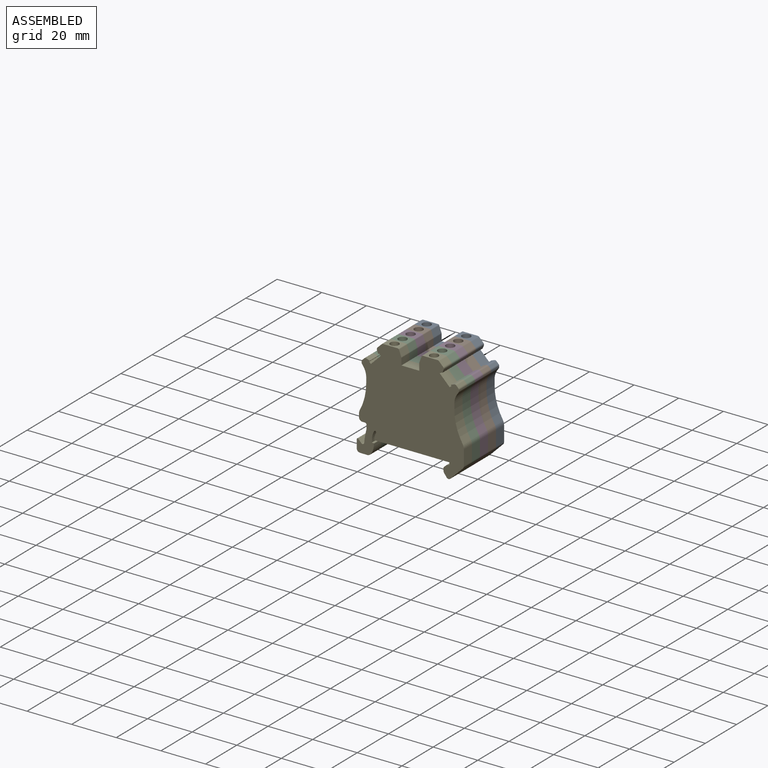
[diagram: assembled view]
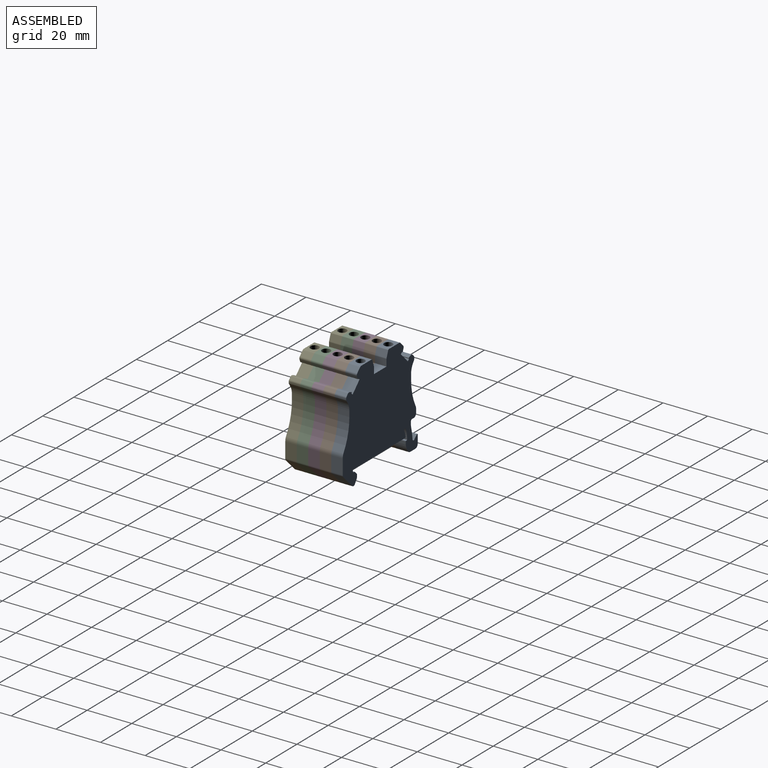
[diagram: assembled view, second angle]
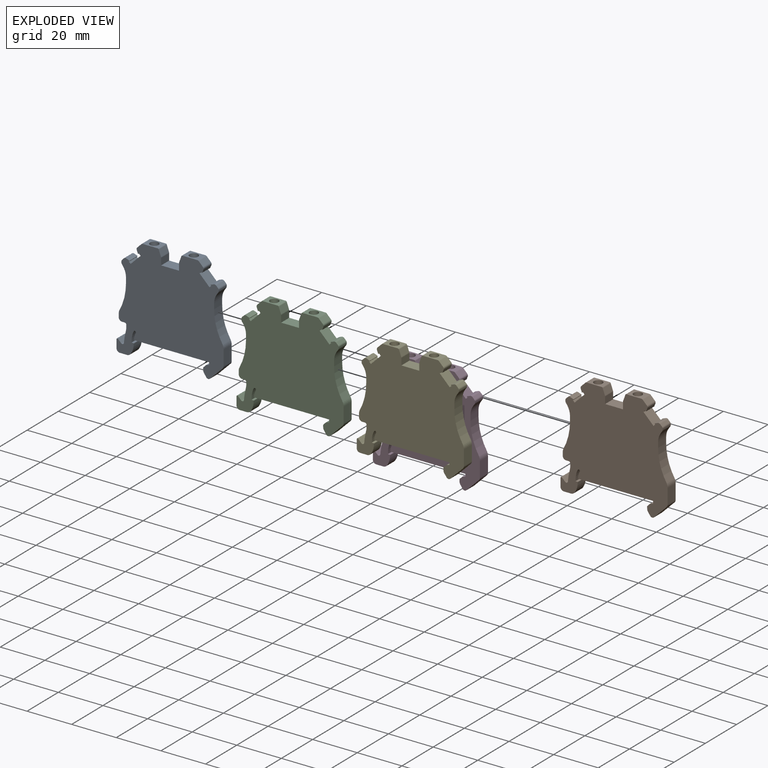
[diagram: exploded view]
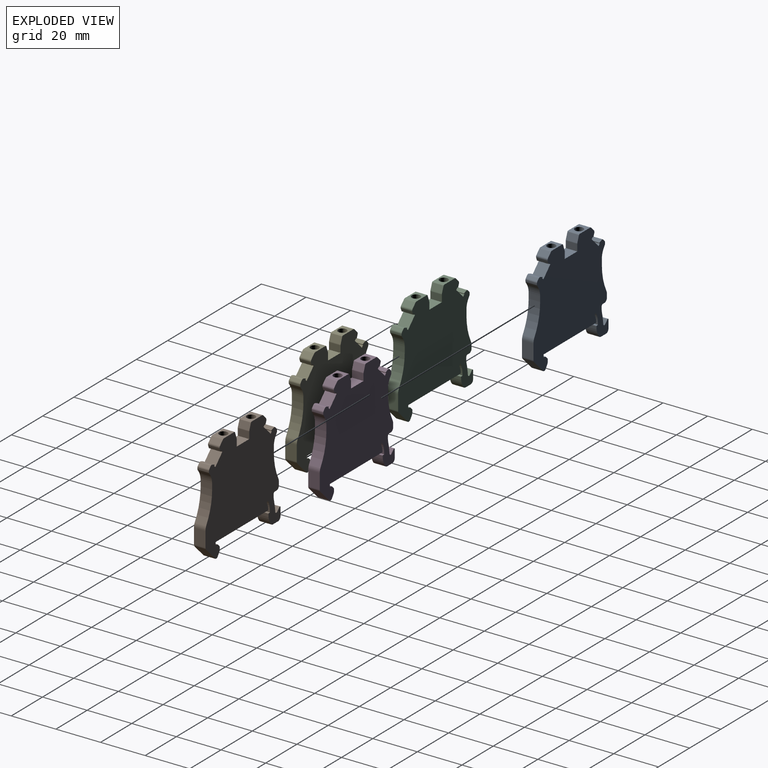
[diagram: exploded view, second angle]
ASSEMBLY  parts=5 mates=12
PART A: 101 faces, bbox 48x5.2x46.9 mm
  f0: plane 48x46.85mm, normal (0,-1,0), area 1599.4mm2, adj f1,f2,f3,f4,f5,f6,f7,f8
  f1: cylinder r=1mm len=5.15mm, axis (0,1,0), area 6mm2, adj f0,f2,f95,f96
  f2: plane 5.15x0.84mm, normal (0.71,0,0.71), area 6.1mm2, adj f0,f1,f3,f96
  f3: cylinder r=1mm len=5.15mm, axis (0,1,0), area 4mm2, adj f0,f2,f4,f96
  f4: plane 5.15x0.47mm, normal (1,0,0), area 2.4mm2, adj f0,f3,f5,f96
  f5: cylinder r=1mm len=5.15mm, axis (0,1,0), area 3.1mm2, adj f0,f4,f6,f96
  f6: plane 5.15x0.86mm, normal (0.82,0,-0.57), area 5.4mm2, adj f0,f5,f7,f96
  f7: cylinder r=7mm len=5.15mm, axis (0,1,0), area 22mm2, adj f0,f6,f8,f96
  f8: plane 5.15x2.37mm, normal (1,0,0), area 12.2mm2, adj f0,f7,f9,f96
  f9: cylinder r=25mm len=13.03mm, axis (0,1,0), area 70.6mm2, adj f0,f8,f10,f96
  f10: cylinder r=4mm len=5.15mm, axis (0,1,0), area 11.3mm2, adj f0,f9,f11,f96
  f11: plane 6.81x5.15mm, normal (1,0,0), area 35.1mm2, adj f0,f10,f12,f96
  f12: cylinder r=1.5mm len=5.15mm, axis (0,1,0), area 6.1mm2, adj f0,f11,f13,f96
  f13: plane 5.67x5.67mm, normal (0.71,0,-0.71), area 41.3mm2, adj f0,f12,f14,f96
  f14: cylinder r=1mm len=5.15mm, axis (0,1,0), area 4mm2, adj f0,f13,f15,f96
  f15: plane 5.15x0.13mm, normal (0,0,-1), area 0.7mm2, adj f0,f14,f16,f96
  f16: cylinder r=1mm len=5.15mm, axis (0,1,0), area 4.9mm2, adj f0,f15,f17,f96
  f17: plane 5.15x1.46mm, normal (-0.82,0,-0.57), area 9.2mm2, adj f0,f16,f18,f96
  f18: cylinder r=2mm len=5.15mm, axis (0,1,0), area 6.3mm2, adj f0,f17,f19,f96
  f19: plane 5.15x0.81mm, normal (-1,0,0), area 4.2mm2, adj f0,f18,f20,f96
  f20: cylinder r=0.5mm len=5.15mm, axis (0,1,0), area 2mm2, adj f0,f19,f21,f96
  f21: plane 5.15x1.11mm, normal (-0.71,0,0.71), area 8.1mm2, adj f0,f20,f22,f96
  f22: cylinder r=0.5mm len=5.15mm, axis (0,1,0), area 1.3mm2, adj f0,f21,f23,f96
  f23: plane 5.15x1.17mm, normal (-0.26,0,0.97), area 6.2mm2, adj f0,f22,f24,f96
  f24: plane 5.15x1.1mm, normal (-1,0,0), area 5.7mm2, adj f0,f23,f25,f96
  f25: plane 33.55x5.15mm, normal (0,0,-1), area 172.8mm2, adj f0,f24,f26,f96
  f26: plane 5.15x0.2mm, normal (-1,0,0), area 1mm2, adj f0,f25,f27,f96
  f27: cylinder r=0.5mm len=5.15mm, axis (0,1,0), area 2mm2, adj f0,f26,f28,f96
  f28: cylinder r=7.3mm len=5.15mm, axis (0,1,0), area 13.9mm2, adj f0,f27,f29,f96
  f29: cylinder r=0.5mm len=5.15mm, axis (0,1,0), area 8.1mm2, adj f0,f28,f30,f96
  f30: cylinder r=8.3mm len=5.15mm, axis (0,1,0), area 20.8mm2, adj f0,f29,f31,f96
  f31: plane 5.15x0.86mm, normal (1,0,0), area 4.4mm2, adj f0,f30,f32,f96
  f32: cylinder r=0.2mm len=5.15mm, axis (0,1,0), area 1.7mm2, adj f0,f31,f33,f96
  f33: plane 5.15x0.52mm, normal (-0.09,0,1), area 2.7mm2, adj f0,f32,f34,f96
  f34: cylinder r=0.15mm len=5.15mm, axis (0,1,0), area 1.3mm2, adj f0,f33,f35,f96
  f35: plane 5.15x0.39mm, normal (1,0,0), area 2mm2, adj f0,f34,f36,f96
  f36: cylinder r=7mm len=5.15mm, axis (0,1,0), area 20.7mm2, adj f0,f35,f37,f96
  f37: cylinder r=9.5mm len=5.15mm, axis (0,1,0), area 2.2mm2, adj f0,f36,f38,f96
  f38: cylinder r=2mm len=5.15mm, axis (0,1,0), area 9.8mm2, adj f0,f37,f39,f96
  f39: plane 5.15x3.21mm, normal (0,0,-1), area 16.5mm2, adj f0,f38,f40,f96
  f40: cylinder r=1.5mm len=5.15mm, axis (0,1,0), area 12.1mm2, adj f0,f39,f41,f96
  f41: plane 5.15x3.66mm, normal (-1,0,0), area 18.8mm2, adj f0,f40,f42,f96
  f42: cylinder r=0.4mm len=5.15mm, axis (0,1,0), area 4.9mm2, adj f0,f41,f43,f96
  f43: plane 5.15x1.37mm, normal (0.71,0,0.71), area 10mm2, adj f0,f42,f44,f96
  f44: cylinder r=0.75mm len=5.15mm, axis (0,1,0), area 8.8mm2, adj f0,f43,f45,f96
  f45: cylinder r=32.1mm len=5.15mm, axis (0,1,0), area 25.9mm2, adj f0,f44,f46,f96
  f46: cylinder r=7.5mm len=5.15mm, axis (0,1,0), area 14.2mm2, adj f0,f45,f47,f96
  f47: cylinder r=0.7mm len=5.15mm, axis (0,1,0), area 5.2mm2, adj f0,f46,f48,f96
  f48: plane 5.15x1.15mm, normal (0,0,-1), area 5.9mm2, adj f0,f47,f49,f96
  f49: cylinder r=1.5mm len=5.15mm, axis (0,1,0), area 12.1mm2, adj f0,f48,f50,f96
  f50: plane 5.15x1.51mm, normal (-1,0,0), area 7.8mm2, adj f0,f49,f51,f96
  f51: cylinder r=3mm len=5.15mm, axis (0,1,0), area 7.5mm2, adj f0,f50,f52,f96
  f52: cylinder r=25mm len=11.69mm, axis (0,1,0), area 62.6mm2, adj f0,f51,f53,f96
  f53: plane 5.15x2.37mm, normal (-1,0,0), area 12.2mm2, adj f0,f52,f54,f96
  f54: cylinder r=7mm len=5.15mm, axis (0,1,0), area 22mm2, adj f0,f53,f55,f96
  f55: plane 5.15x0.86mm, normal (-0.82,0,-0.57), area 5.4mm2, adj f0,f54,f56,f96
  f56: cylinder r=1mm len=5.15mm, axis (0,1,0), area 3.1mm2, adj f0,f55,f57,f96
  f57: plane 5.15x0.47mm, normal (-1,0,0), area 2.4mm2, adj f0,f56,f58,f96
  f58: cylinder r=1mm len=5.15mm, axis (0,1,0), area 4mm2, adj f0,f57,f59,f96
  f59: plane 5.15x0.84mm, normal (-0.71,0,0.71), area 6.1mm2, adj f0,f58,f60,f96
  f60: cylinder r=1mm len=5.15mm, axis (0,1,0), area 6mm2, adj f0,f59,f61,f96
  f61: plane 5.15x1.29mm, normal (0.36,0,0.93), area 7.1mm2, adj f0,f60,f62,f96
  f62: cylinder r=0.17mm len=5.15mm, axis (0,1,0), area 1.7mm2, adj f0,f61,f63,f96
  f63: plane 5.15x0.19mm, normal (0.71,0,-0.71), area 1.4mm2, adj f0,f62,f64,f96
  f64: plane 5.15x0.76mm, normal (0.71,0,0.71), area 5.5mm2, adj f0,f63,f65,f96
  f65: plane 5.15x4.47mm, normal (-0.71,0,0.71), area 32.6mm2, adj f0,f64,f66,f96
  f66: plane 5.15x0.76mm, normal (-0.71,0,-0.71), area 5.5mm2, adj f0,f65,f67,f96
  f67: plane 5.15x0.19mm, normal (0.71,0,-0.71), area 1.4mm2, adj f0,f66,f68,f96
  f68: cylinder r=0.17mm len=5.15mm, axis (0,1,0), area 1.7mm2, adj f0,f67,f69,f96
  f69: plane 5.15x1.29mm, normal (-0.93,0,-0.36), area 7.1mm2, adj f0,f68,f70,f96
  f70: cylinder r=1mm len=5.15mm, axis (0,1,0), area 6mm2, adj f0,f69,f71,f96
  f71: plane 5.15x1.82mm, normal (-0.71,0,0.71), area 13.3mm2, adj f0,f70,f72,f96
  f72: cylinder r=1mm len=5.15mm, axis (0,1,0), area 4mm2, adj f0,f71,f73,f96
  f73: plane 6.64x5.15mm, normal (0,0,1), area 22.8mm2, adj f0,f72,f74,f96,f97
  f74: cylinder r=0.5mm len=5.15mm, axis (0,1,0), area 3.1mm2, adj f0,f73,f75,f96
  f75: plane 5.15x2.8mm, normal (0.94,0,0.34), area 15.4mm2, adj f0,f74,f76,f96
  f76: cylinder r=1mm len=5.15mm, axis (0,1,0), area 1.8mm2, adj f0,f75,f77,f96
  f77: plane 5.15x3.03mm, normal (1,0,0), area 15.6mm2, adj f0,f76,f78,f96
  f78: plane 8x5.15mm, normal (0,0,1), area 41.2mm2, adj f0,f77,f79,f96
  f79: plane 5.15x3.03mm, normal (-1,0,0), area 15.6mm2, adj f0,f78,f80,f96
  f80: cylinder r=1mm len=5.15mm, axis (0,1,0), area 1.8mm2, adj f0,f79,f81,f96
  f81: plane 5.15x2.8mm, normal (-0.94,0,0.34), area 15.4mm2, adj f0,f80,f82,f96
  f82: cylinder r=0.5mm len=5.15mm, axis (0,1,0), area 3.1mm2, adj f0,f81,f83,f96
  f83: plane 6.64x5.15mm, normal (0,0,1), area 22.8mm2, adj f0,f82,f84,f96,f99
  f84: cylinder r=1mm len=5.15mm, axis (0,1,0), area 4mm2, adj f0,f83,f85,f96
  f85: plane 5.15x1.82mm, normal (0.71,0,0.71), area 13.3mm2, adj f0,f84,f86,f96
  f86: cylinder r=1mm len=5.15mm, axis (0,1,0), area 6mm2, adj f0,f85,f87,f96
  f87: plane 5.15x1.29mm, normal (0.93,0,-0.36), area 7.1mm2, adj f0,f86,f88,f96
  f88: cylinder r=0.17mm len=5.15mm, axis (0,1,0), area 1.7mm2, adj f0,f87,f89,f96
  f89: plane 5.15x0.19mm, normal (-0.71,0,-0.71), area 1.4mm2, adj f0,f88,f90,f96
  f90: plane 5.15x0.76mm, normal (0.71,0,-0.71), area 5.5mm2, adj f0,f89,f91,f96
  f91: plane 5.15x4.47mm, normal (0.71,0,0.71), area 32.6mm2, adj f0,f90,f92,f96
  f92: plane 5.15x0.76mm, normal (-0.71,0,0.71), area 5.5mm2, adj f0,f91,f93,f96
  f93: plane 5.15x0.19mm, normal (-0.71,0,-0.71), area 1.4mm2, adj f0,f92,f94,f96
  f94: cylinder r=0.17mm len=5.15mm, axis (0,1,0), area 1.7mm2, adj f0,f93,f95,f96
  f95: plane 5.15x1.29mm, normal (-0.36,0,0.93), area 7.1mm2, adj f0,f1,f94,f96
  f96: plane 48x46.85mm, normal (0,1,0), area 1599.4mm2, adj f1,f2,f3,f4,f5,f6,f7,f8
  f97: cylinder r=1.91mm len=3.81mm, axis (0,0,1), area 30.4mm2, adj f73,f98
  f98: plane 3.81x3.81mm, normal (0,0,1), area 11.4mm2, adj f97
  f99: cylinder r=1.91mm len=3.81mm, axis (0,0,1), area 30.4mm2, adj f83,f100
  f100: plane 3.81x3.81mm, normal (0,0,1), area 11.4mm2, adj f99
PART B: same geometry as A
PART C: same geometry as A
PART D: same geometry as A
PART E: same geometry as A
PLACE A t=(13.76,-9.27,-26.04)mm
PLACE B t=(13.76,-14.42,-26.04)mm
PLACE C t=(13.76,-24.72,-26.04)mm
PLACE D t=(13.76,-19.57,-26.04)mm
PLACE E t=(13.76,-29.87,-26.04)mm
MATE planar C.f79 <-> D.f79  axis (-1,0,0) through (0.26,-27.3,8.98)mm
MATE planar A.f79 <-> B.f79  axis (-1,0,0) through (0.26,-11.85,8.98)mm
MATE planar B.f25 <-> D.f25  axis (0,0,-1) through (-3.01,-17,-26.04)mm
MATE planar E.f25 <-> C.f25  axis (0,0,-1) through (-3.01,-32.45,-26.04)mm
MATE planar D.f79 <-> B.f79  axis (-1,0,0) through (0.26,-22.15,8.98)mm
MATE planar E.f96 <-> C.f0  axis (0,1,0) through (-3.01,-29.87,-26.04)mm
MATE planar A.f25 <-> B.f25  axis (0,0,-1) through (-3.01,-11.85,-26.04)mm
MATE planar C.f96 <-> D.f0  axis (0,1,0) through (-3.4,-24.72,-9.09)mm
MATE planar C.f79 <-> E.f79  axis (-1,0,0) through (0.26,-27.3,8.98)mm
MATE planar A.f0 <-> B.f51  axis (0,-1,0) through (-16.95,-14.42,8.86)mm
MATE planar D.f96 <-> B.f0  axis (0,1,0) through (-3.4,-19.57,-9.09)mm
MATE planar C.f25 <-> D.f25  axis (0,0,-1) through (-3.01,-27.3,-26.04)mm
